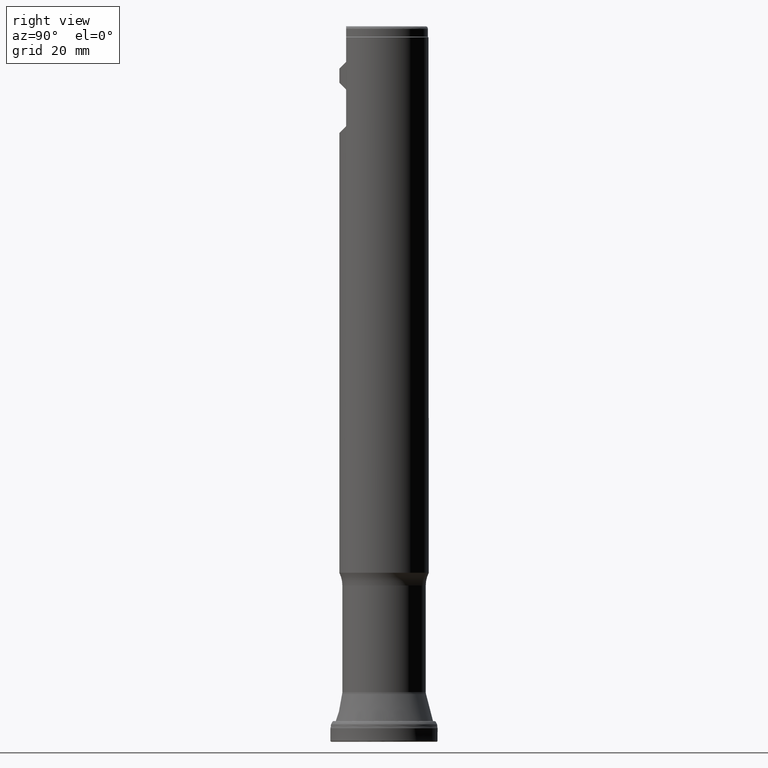
[diagram: clean part render]
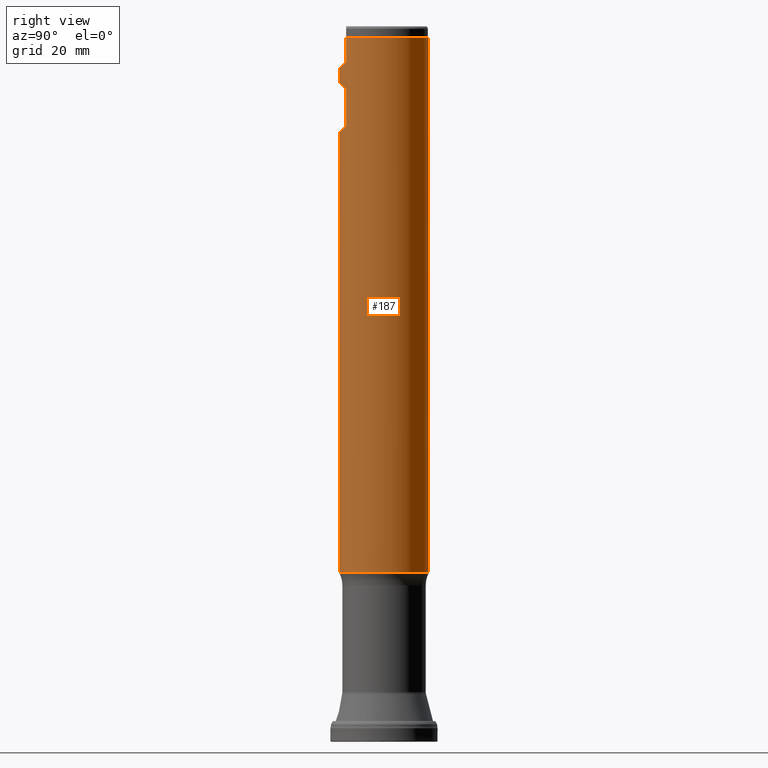
[diagram: same view with one face highlighted and labeled with its STEP entity id]
A machine part, right view. The second image highlights one B-rep face of the part: STEP entity #187.
In plain terms, the highlighted cylindrical surface (bore or boss wall) has radius 15.875 mm, axis along (0, 0, 1).
Its self-contained STEP definition (entity closure, byte-faithful):
#187=ADVANCED_FACE('',(#288,#289,#290),#238,.T.);
#238=CYLINDRICAL_SURFACE('',#816,15.875);
#246=CIRCLE('',#813,15.875);
#247=CIRCLE('',#814,15.875);
#288=FACE_BOUND('',#369,.T.);
#289=FACE_BOUND('',#370,.T.);
#290=FACE_BOUND('',#371,.T.);
#369=EDGE_LOOP('',(#500,#501,#502,#503,#504,#505,#506,#507));
#370=EDGE_LOOP('',(#508));
#371=EDGE_LOOP('',(#509,#510,#511,#512,#513,#514));
#459=LINE('',#1312,#478);
#460=LINE('',#1344,#479);
#461=LINE('',#1362,#480);
#462=LINE('',#1366,#481);
#478=VECTOR('',#890,1.);
#479=VECTOR('',#893,1.);
#480=VECTOR('',#896,1.);
#481=VECTOR('',#899,1.);
#497=ELLIPSE('',#811,22.4506403026729,15.875);
#498=ELLIPSE('',#812,22.4506403026729,15.875);
#499=ELLIPSE('',#815,22.4506403026729,15.875);
#500=ORIENTED_EDGE('',*,*,#696,.F.);
#501=ORIENTED_EDGE('',*,*,#697,.T.);
#502=ORIENTED_EDGE('',*,*,#698,.F.);
#503=ORIENTED_EDGE('',*,*,#699,.T.);
#504=ORIENTED_EDGE('',*,*,#700,.F.);
#505=ORIENTED_EDGE('',*,*,#701,.T.);
#506=ORIENTED_EDGE('',*,*,#702,.F.);
#507=ORIENTED_EDGE('',*,*,#703,.T.);
#508=ORIENTED_EDGE('',*,*,#704,.T.);
#509=ORIENTED_EDGE('',*,*,#705,.F.);
#510=ORIENTED_EDGE('',*,*,#706,.T.);
#511=ORIENTED_EDGE('',*,*,#707,.F.);
#512=ORIENTED_EDGE('',*,*,#708,.T.);
#513=ORIENTED_EDGE('',*,*,#709,.F.);
#514=ORIENTED_EDGE('',*,*,#710,.T.);
#636=VERTEX_POINT('',#1294);
#637=VERTEX_POINT('',#1295);
#638=VERTEX_POINT('',#1297);
#639=VERTEX_POINT('',#1311);
#640=VERTEX_POINT('',#1313);
#641=VERTEX_POINT('',#1327);
#642=VERTEX_POINT('',#1329);
#643=VERTEX_POINT('',#1343);
#644=VERTEX_POINT('',#1346);
#645=VERTEX_POINT('',#1360);
#646=VERTEX_POINT('',#1361);
#647=VERTEX_POINT('',#1363);
#648=VERTEX_POINT('',#1365);
#649=VERTEX_POINT('',#1367);
#650=VERTEX_POINT('',#1381);
#696=EDGE_CURVE('',#636,#637,#785,.T.);
#697=EDGE_CURVE('',#636,#638,#497,.T.);
#698=EDGE_CURVE('',#639,#638,#786,.T.);
#699=EDGE_CURVE('',#639,#640,#459,.T.);
#700=EDGE_CURVE('',#641,#640,#787,.T.);
#701=EDGE_CURVE('',#641,#642,#498,.T.);
#702=EDGE_CURVE('',#643,#642,#788,.T.);
#703=EDGE_CURVE('',#643,#637,#460,.T.);
#704=EDGE_CURVE('',#644,#644,#246,.T.);
#705=EDGE_CURVE('',#645,#646,#789,.T.);
#706=EDGE_CURVE('',#645,#647,#461,.T.);
#707=EDGE_CURVE('',#648,#647,#247,.T.);
#708=EDGE_CURVE('',#648,#649,#462,.T.);
#709=EDGE_CURVE('',#650,#649,#790,.T.);
#710=EDGE_CURVE('',#650,#646,#499,.T.);
#785=B_SPLINE_CURVE_WITH_KNOTS('',3,(#1281,#1282,#1283,#1284,#1285,#1286,
#1287,#1288,#1289,#1290,#1291,#1292,#1293),.UNSPECIFIED.,.F.,.F.,(4,3,3,
3,4),(0.,0.454533174547846,0.702164538890485,0.910432884672705,1.),
 .UNSPECIFIED.);
#786=B_SPLINE_CURVE_WITH_KNOTS('',3,(#1298,#1299,#1300,#1301,#1302,#1303,
#1304,#1305,#1306,#1307,#1308,#1309,#1310),.UNSPECIFIED.,.F.,.F.,(4,3,3,
3,4),(0.,0.19914721607593,0.441583635070344,0.807737111942782,1.),
 .UNSPECIFIED.);
#787=B_SPLINE_CURVE_WITH_KNOTS('',3,(#1314,#1315,#1316,#1317,#1318,#1319,
#1320,#1321,#1322,#1323,#1324,#1325,#1326),.UNSPECIFIED.,.F.,.F.,(4,3,3,
3,4),(0.,0.454533174547862,0.702164538890488,0.910432884672609,1.),
 .UNSPECIFIED.);
#788=B_SPLINE_CURVE_WITH_KNOTS('',3,(#1330,#1331,#1332,#1333,#1334,#1335,
#1336,#1337,#1338,#1339,#1340,#1341,#1342),.UNSPECIFIED.,.F.,.F.,(4,3,3,
3,4),(0.,0.19914721607583,0.441583635070221,0.807737111942809,1.),
 .UNSPECIFIED.);
#789=B_SPLINE_CURVE_WITH_KNOTS('',3,(#1347,#1348,#1349,#1350,#1351,#1352,
#1353,#1354,#1355,#1356,#1357,#1358,#1359),.UNSPECIFIED.,.F.,.F.,(4,3,3,
3,4),(0.,0.199147216075832,0.441583635070225,0.807737111942812,1.),
 .UNSPECIFIED.);
#790=B_SPLINE_CURVE_WITH_KNOTS('',3,(#1368,#1369,#1370,#1371,#1372,#1373,
#1374,#1375,#1376,#1377,#1378,#1379,#1380),.UNSPECIFIED.,.F.,.F.,(4,3,3,
3,4),(0.,0.454533174547855,0.702164538890484,0.910432884672608,1.),
 .UNSPECIFIED.);
#811=AXIS2_PLACEMENT_3D('',#1296,#888,#889);
#812=AXIS2_PLACEMENT_3D('',#1328,#891,#892);
#813=AXIS2_PLACEMENT_3D('',#1345,#894,#895);
#814=AXIS2_PLACEMENT_3D('',#1364,#897,#898);
#815=AXIS2_PLACEMENT_3D('',#1382,#900,#901);
#816=AXIS2_PLACEMENT_3D('',#1383,#902,#903);
#888=DIRECTION('',(8.28344032153662E-16,0.707106781186548,0.707106781186547));
#889=DIRECTION('',(-8.28344032153662E-16,-0.707106781186547,0.707106781186548));
#890=DIRECTION('',(0.,-1.17145536458252E-15,-1.));
#891=DIRECTION('',(-8.28344032153663E-16,0.707106781186547,-0.707106781186549));
#892=DIRECTION('',(-8.28344032153663E-16,0.707106781186549,0.707106781186547));
#893=DIRECTION('',(0.,1.17145536458252E-15,1.));
#894=DIRECTION('',(0.,1.17145536458252E-15,1.));
#895=DIRECTION('',(0.,-1.,1.31128703695885E-15));
#896=DIRECTION('',(0.,1.17145536458252E-15,1.));
#897=DIRECTION('',(0.,1.17145536458252E-15,1.));
#898=DIRECTION('',(0.,-1.,0.));
#899=DIRECTION('',(0.,-1.17145536458252E-15,-1.));
#900=DIRECTION('',(-8.28344032153662E-16,0.707106781186547,-0.707106781186548));
#901=DIRECTION('',(-8.28344032153661E-16,0.707106781186548,0.707106781186547));
#902=DIRECTION('',(0.,1.17145536458252E-15,1.));
#903=DIRECTION('',(0.,-1.,1.17145536458252E-15));
#1281=CARTESIAN_POINT('',(-8.22968557485393,-13.5752679656438,231.669192965644));
#1282=CARTESIAN_POINT('',(-8.26214403842775,-13.5555907887268,231.649515788727));
#1283=CARTESIAN_POINT('',(-8.29324127122086,-13.5365680579466,231.62516207342));
#1284=CARTESIAN_POINT('',(-8.31880056112414,-13.5208425116275,231.594709416179));
#1285=CARTESIAN_POINT('',(-8.33281049061591,-13.5122227966048,231.578017263056));
#1286=CARTESIAN_POINT('',(-8.34532550776586,-13.5044914646335,231.559155789535));
#1287=CARTESIAN_POINT('',(-8.35473859034975,-13.4986654187336,231.538500120755));
#1288=CARTESIAN_POINT('',(-8.36264707757228,-13.493770613111,231.521146072157));
#1289=CARTESIAN_POINT('',(-8.36846404353176,-13.4901610267411,231.502110432187));
#1290=CARTESIAN_POINT('',(-8.3711476120283,-13.4884955668757,231.482676158377));
#1291=CARTESIAN_POINT('',(-8.37231518540506,-13.4877709546285,231.474220648213));
#1292=CARTESIAN_POINT('',(-8.37291264972948,-13.4873999999997,231.465627374111));
#1293=CARTESIAN_POINT('',(-8.37291264972948,-13.4873999999997,231.457060931288));
#1294=CARTESIAN_POINT('',(-8.22968557485393,-13.5752679656438,231.669192965644));
#1295=CARTESIAN_POINT('',(-8.37291264972948,-13.4873999999997,231.457060931288));
#1296=CARTESIAN_POINT('',(0.,2.55487298424109E-13,218.093925));
#1297=CARTESIAN_POINT('',(8.22968557485393,-13.5752679656438,231.669192965644));
#1298=CARTESIAN_POINT('',(8.37291264972948,-13.4873999999997,231.457060931288));
#1299=CARTESIAN_POINT('',(8.37291264972948,-13.4873999999997,231.475881064048));
#1300=CARTESIAN_POINT('',(8.36992693774143,-13.4892545485355,231.494934859006));
#1301=CARTESIAN_POINT('',(8.36453687582311,-13.4925960383089,231.51265431373));
#1302=CARTESIAN_POINT('',(8.35798061989729,-13.4966604929404,231.534207550372));
#1303=CARTESIAN_POINT('',(8.34778398154641,-13.5029748527274,231.554425584553));
#1304=CARTESIAN_POINT('',(8.33568000754059,-13.5104427689059,231.572363542468));
#1305=CARTESIAN_POINT('',(8.31744673800205,-13.5216923410305,231.599385049741));
#1306=CARTESIAN_POINT('',(8.29449252987567,-13.5357984747799,231.622249165019));
#1307=CARTESIAN_POINT('',(8.27002445290943,-13.5507313658073,231.641419162972));
#1308=CARTESIAN_POINT('',(8.25706862585497,-13.5586383195838,231.651569661454));
#1309=CARTESIAN_POINT('',(8.24354784478495,-13.5668642919061,231.660789291911));
#1310=CARTESIAN_POINT('',(8.22968557485579,-13.5752679656428,231.669192965647));
#1311=CARTESIAN_POINT('',(8.37291264972948,-13.4873999999997,231.457060931288));
#1312=CARTESIAN_POINT('',(8.37291264972948,-13.4874,1.57998870842703E-14));
#1313=CARTESIAN_POINT('',(8.37291264972948,-13.4873999999997,218.599189068712));
#1314=CARTESIAN_POINT('',(8.22968557485392,-13.5752679656438,218.387057034356));
#1315=CARTESIAN_POINT('',(8.26214403842775,-13.5555907887268,218.406734211273));
#1316=CARTESIAN_POINT('',(8.29324127122085,-13.5365680579466,218.43108792658));
#1317=CARTESIAN_POINT('',(8.31880056112414,-13.5208425116275,218.461540583821));
#1318=CARTESIAN_POINT('',(8.3328104906159,-13.5122227966048,218.478232736944));
#1319=CARTESIAN_POINT('',(8.34532550776586,-13.5044914646335,218.497094210465));
#1320=CARTESIAN_POINT('',(8.35473859034975,-13.4986654187336,218.517749879245));
#1321=CARTESIAN_POINT('',(8.36264707757227,-13.493770613111,218.535103927843));
#1322=CARTESIAN_POINT('',(8.36846404353175,-13.4901610267411,218.554139567813));
#1323=CARTESIAN_POINT('',(8.3711476120283,-13.4884955668757,218.573573841623));
#1324=CARTESIAN_POINT('',(8.37231518540506,-13.4877709546285,218.582029351787));
#1325=CARTESIAN_POINT('',(8.37291264972949,-13.4873999999997,218.590622625889));
#1326=CARTESIAN_POINT('',(8.37291264972948,-13.4873999999997,218.599189068712));
#1327=CARTESIAN_POINT('',(8.22968557485392,-13.5752679656438,218.387057034356));
#1328=CARTESIAN_POINT('',(0.,2.71733510002285E-13,231.962325));
#1329=CARTESIAN_POINT('',(-8.22968557485393,-13.5752679656438,218.387057034356));
#1330=CARTESIAN_POINT('',(-8.37291264972948,-13.4873999999997,218.599189068712));
#1331=CARTESIAN_POINT('',(-8.37291264972949,-13.4873999999997,218.580368935952));
#1332=CARTESIAN_POINT('',(-8.36992693774143,-13.4892545485355,218.561315140994));
#1333=CARTESIAN_POINT('',(-8.36453687582311,-13.4925960383089,218.54359568627));
#1334=CARTESIAN_POINT('',(-8.35798061989729,-13.4966604929404,218.522042449628));
#1335=CARTESIAN_POINT('',(-8.34778398154642,-13.5029748527274,218.501824415447));
#1336=CARTESIAN_POINT('',(-8.3356800075406,-13.5104427689059,218.483886457532));
#1337=CARTESIAN_POINT('',(-8.31744673800206,-13.5216923410305,218.456864950259));
#1338=CARTESIAN_POINT('',(-8.29449252987566,-13.5357984747799,218.434000834981));
#1339=CARTESIAN_POINT('',(-8.27002445290941,-13.5507313658073,218.414830837028));
#1340=CARTESIAN_POINT('',(-8.25706862585496,-13.5586383195838,218.404680338546));
#1341=CARTESIAN_POINT('',(-8.24354784478493,-13.5668642919061,218.395460708089));
#1342=CARTESIAN_POINT('',(-8.22968557485578,-13.5752679656428,218.387057034353));
#1343=CARTESIAN_POINT('',(-8.37291264972948,-13.4873999999997,218.599189068712));
#1344=CARTESIAN_POINT('',(-8.37291264972948,-13.4874,1.57998870842703E-14));
#1345=CARTESIAN_POINT('',(0.,7.02812303070556E-14,59.9948));
#1346=CARTESIAN_POINT('',(0.,-15.8749999999999,59.9948));
#1347=CARTESIAN_POINT('',(-8.37291264972948,-13.4873999999997,241.424264068712));
#1348=CARTESIAN_POINT('',(-8.37291264972949,-13.4873999999997,241.405443935952));
#1349=CARTESIAN_POINT('',(-8.36992693774143,-13.4892545485354,241.386390140994));
#1350=CARTESIAN_POINT('',(-8.36453687582311,-13.4925960383088,241.36867068627));
#1351=CARTESIAN_POINT('',(-8.35798061989729,-13.4966604929404,241.347117449628));
#1352=CARTESIAN_POINT('',(-8.34778398154642,-13.5029748527274,241.326899415447));
#1353=CARTESIAN_POINT('',(-8.3356800075406,-13.5104427689058,241.308961457532));
#1354=CARTESIAN_POINT('',(-8.31744673800206,-13.5216923410305,241.281939950259));
#1355=CARTESIAN_POINT('',(-8.29449252987566,-13.5357984747799,241.259075834981));
#1356=CARTESIAN_POINT('',(-8.27002445290941,-13.5507313658073,241.239905837028));
#1357=CARTESIAN_POINT('',(-8.25706862585496,-13.5586383195838,241.229755338546));
#1358=CARTESIAN_POINT('',(-8.24354784478494,-13.5668642919061,241.220535708089));
#1359=CARTESIAN_POINT('',(-8.22968557485579,-13.5752679656428,241.212132034353));
#1360=CARTESIAN_POINT('',(-8.37291264972948,-13.4873999999997,241.424264068712));
#1361=CARTESIAN_POINT('',(-8.22968557485393,-13.5752679656438,241.212132034356));
#1362=CARTESIAN_POINT('',(-8.37291264972948,-13.4874,1.57998870842703E-14));
#1363=CARTESIAN_POINT('',(-8.37291264972948,-13.4873999999997,250.));
#1364=CARTESIAN_POINT('',(0.,2.92863841145631E-13,250.));
#1365=CARTESIAN_POINT('',(8.37291264972948,-13.4873999999997,250.));
#1366=CARTESIAN_POINT('',(8.37291264972948,-13.4874,1.57998870842703E-14));
#1367=CARTESIAN_POINT('',(8.37291264972948,-13.4873999999997,241.424264068712));
#1368=CARTESIAN_POINT('',(8.22968557485393,-13.5752679656438,241.212132034356));
#1369=CARTESIAN_POINT('',(8.26214403842775,-13.5555907887268,241.231809211273));
#1370=CARTESIAN_POINT('',(8.29324127122085,-13.5365680579466,241.25616292658));
#1371=CARTESIAN_POINT('',(8.31880056112414,-13.5208425116275,241.286615583821));
#1372=CARTESIAN_POINT('',(8.3328104906159,-13.5122227966048,241.303307736944));
#1373=CARTESIAN_POINT('',(8.34532550776586,-13.5044914646335,241.322169210465));
#1374=CARTESIAN_POINT('',(8.35473859034975,-13.4986654187336,241.342824879245));
#1375=CARTESIAN_POINT('',(8.36264707757227,-13.493770613111,241.360178927843));
#1376=CARTESIAN_POINT('',(8.36846404353175,-13.4901610267411,241.379214567813));
#1377=CARTESIAN_POINT('',(8.3711476120283,-13.4884955668757,241.398648841623));
#1378=CARTESIAN_POINT('',(8.37231518540506,-13.4877709546284,241.407104351787));
#1379=CARTESIAN_POINT('',(8.37291264972949,-13.4873999999997,241.415697625889));
#1380=CARTESIAN_POINT('',(8.37291264972948,-13.4873999999997,241.424264068712));
#1381=CARTESIAN_POINT('',(8.22968557485393,-13.5752679656438,241.212132034356));
#1382=CARTESIAN_POINT('',(0.,2.98472066558033E-13,254.7874));
#1383=CARTESIAN_POINT('',(0.,0.,0.));